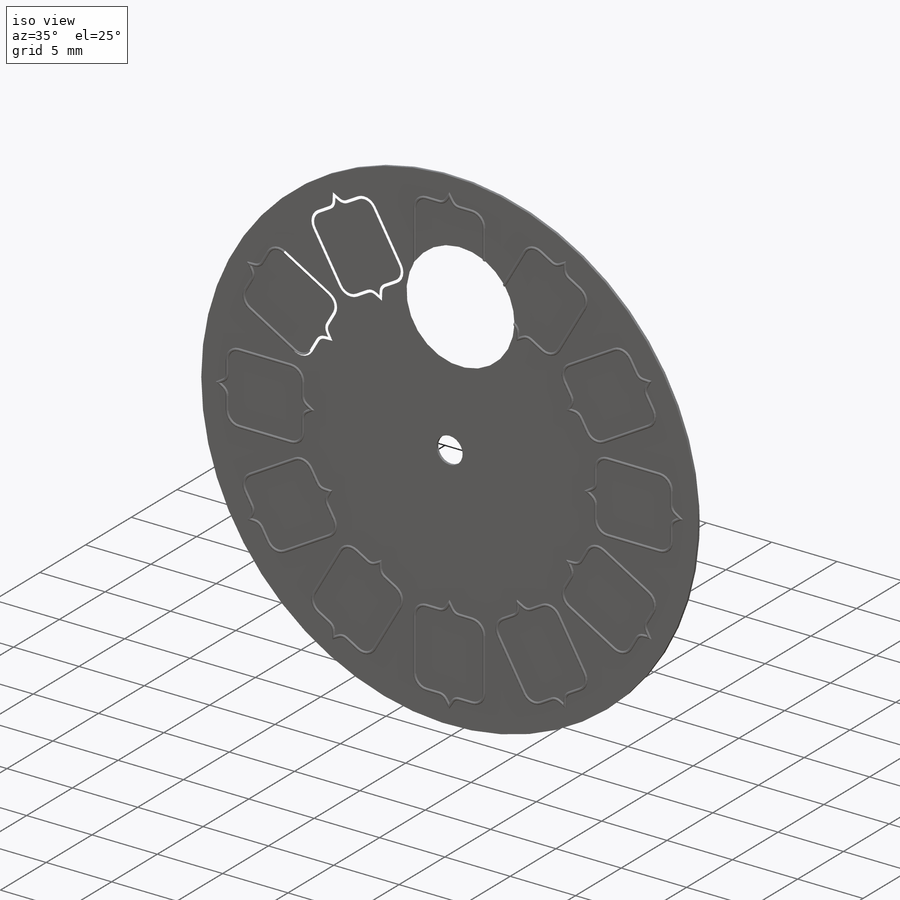
[diagram: iso view]
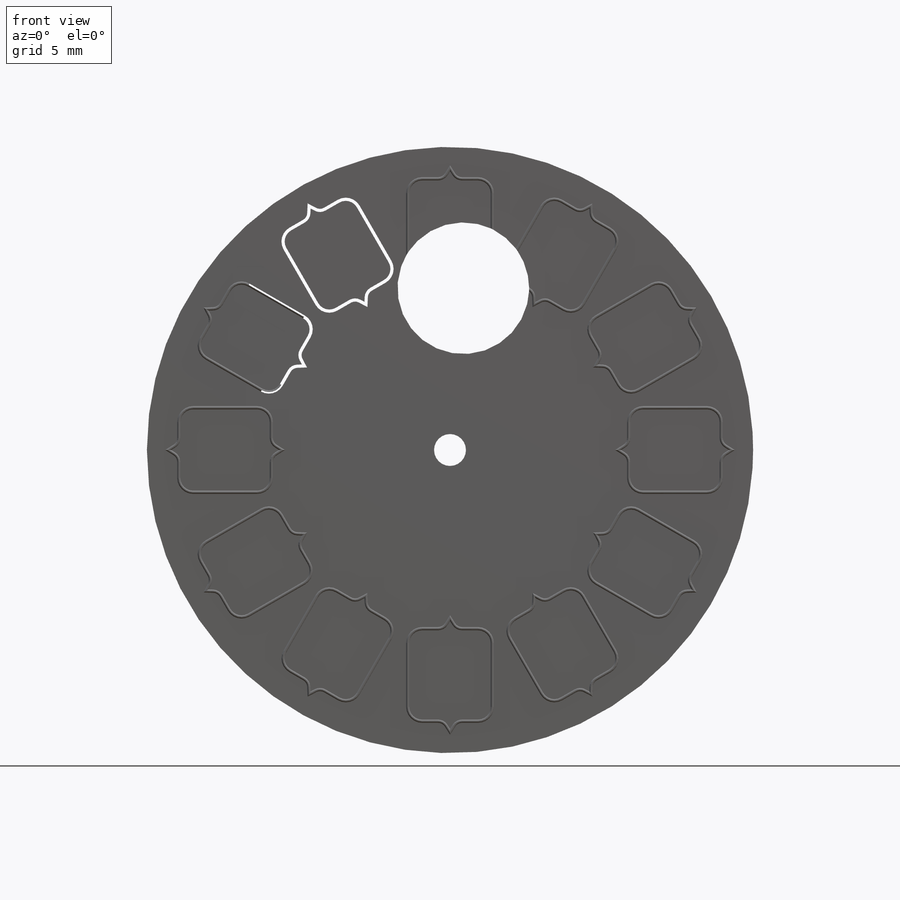
[diagram: front view]
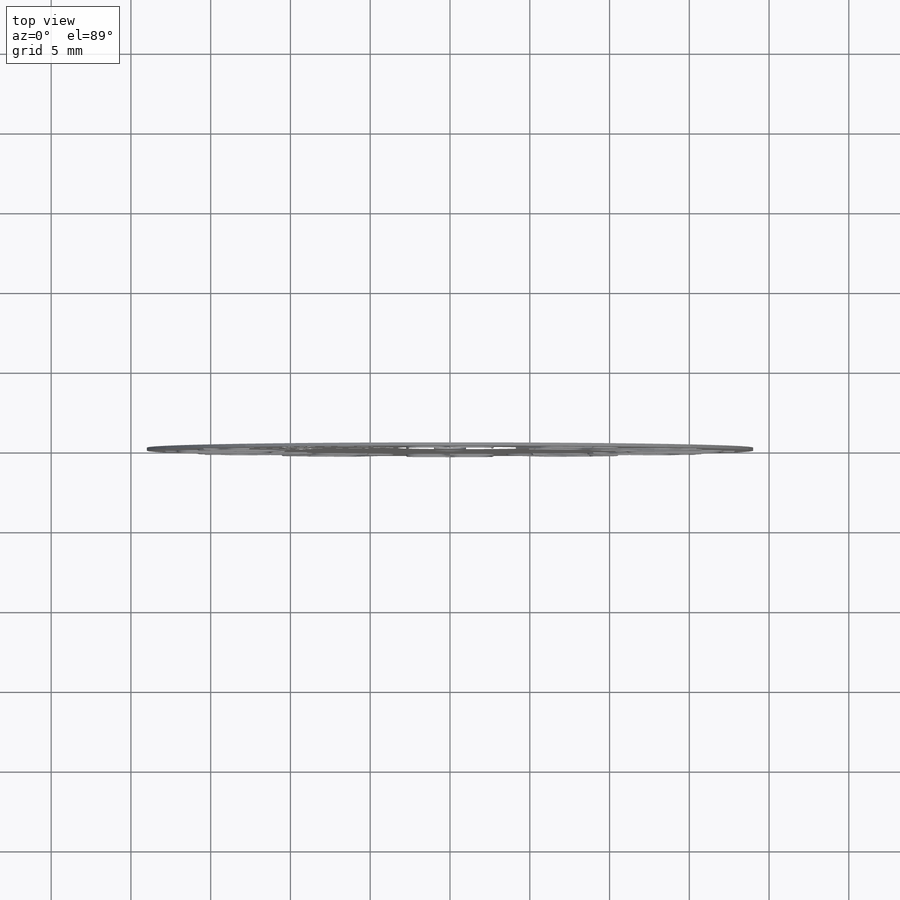
[diagram: top view]
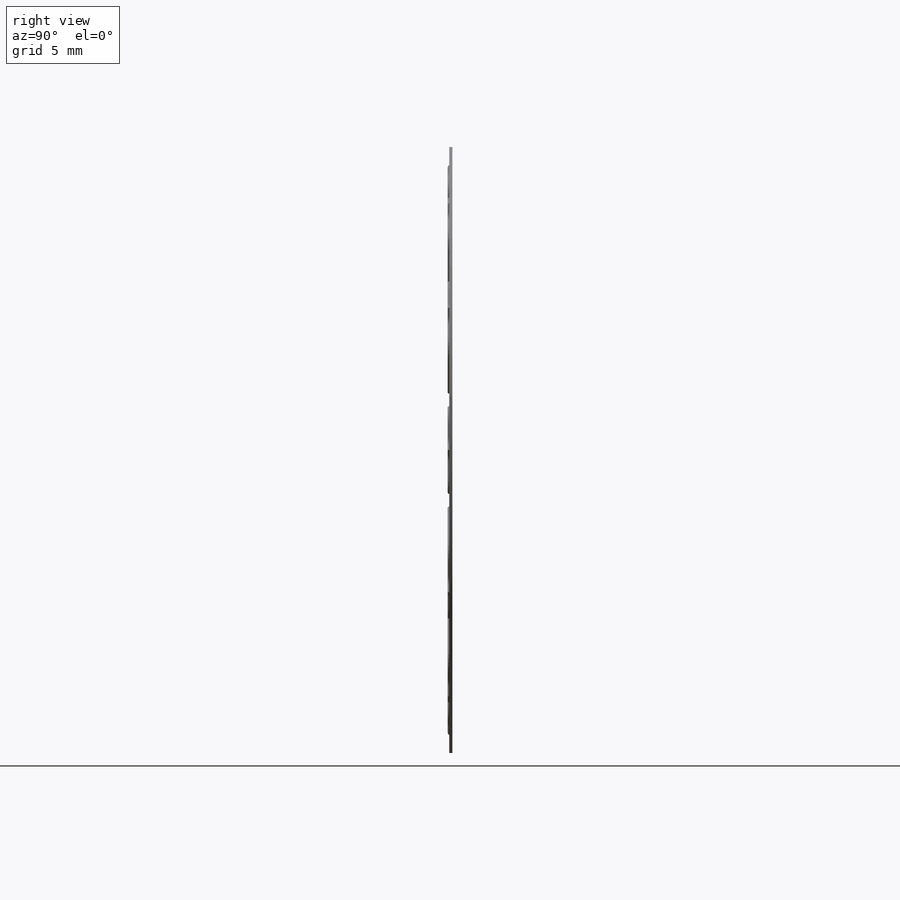
[diagram: right view]
SOLIDWORKS PART (.sldprt)
format: sldprt  version: not decoded by parser v0  size: 3,139,072 bytes
history: native  units: mm
features: sketch x6, extrude x3, cut_extrude x3, material x1, fillet x1, pattern_circular x1 (+11 scaffold rows collapsed)
feature tree (26):
  scaffold x11  (default folders/planes/origin — collapsed)
  material  "Material <sin especificar>"
  sketch  "Croquis1"  dims[D1=38.0mm D2=2.0mm]
  extrude  "Saliente-Extruir1"  Depth=0.2mm
  sketch  "Croquis2"  dims[c1.D5=1.0mm c1.D6=0.5mm c1.D7=0.5mm c1.D8=0.5mm c1.D9=0.5mm c1.D1=2.0mm c1.D2=5.0mm c1.D3=12.0mm c1.D4=5.5mm c2.D3=1.0mm c2.D4=1.0mm c2.D10=0.75mm c2.D11=0.75mm c2.D12=10.35mm c2.D13=7.5mm c2.D14=2.0mm c2.D15=2.0mm c3.D14=2.5mm c3.D15=~0.655051mm c3.D2=~0.655051mm c4.D14=2.75mm c4.D2=2.75mm]
  extrude  "Saliente-Extruir3"  Depth=0.1mm
  sketch  "Croquis6"  dims[D1=0.2mm]
  cut_extrude  "Cortar-Extruir7"  Depth=0.1mm
  fillet  "Redondeo2"  Radius=0.1mm
  pattern_circular  "MatrizC1"  Count=12 Angle=360deg
  sketch  "Croquis3"  dims[c1.D1=8.0mm c1.D4=8.0mm c1.D5=8.25mm c1.D2=0.75mm c1.D3=6.0mm c2.D4=~4.010044mm c3.D4=35.0deg c3.D5=4.8575mm c4.D4=~4.010044mm c5.D4=35.0deg c5.D2=0.75mm c5.D1=~3.479494mm c6.D1=15.0deg c6.D2=~4.51154mm c7.D2=30.0deg c7.D3=4.85mm c7.D4=6.15mm c7.D6=6.15mm c7.D7=~3.479494mm c8.D7=15.0deg c8.D1=~2.096725mm c9.D1=15.0deg c9.D4=6.15mm c9.D2=~3.55973mm c10.D2=30.0deg c10.D3=4.85mm]
  extrude  "Saliente-Extruir4"  Depth=0.1mm
  sketch  "Croquis9"  dims[D1=7.8mm]
  cut_extrude  "Cortar-Extruir9"  Depth=0.1mm
  sketch  "Croquis11"  dims[D1=0.5mm]
  cut_extrude  "Cortar-Extruir10"  Depth=10mm
decode coverage: 14 of 14 modeling features carry decoded parameters
note: ~ marks probable driven/reference dimensions
note: suppression state not decoded; provenance and decode notes live in map.json
